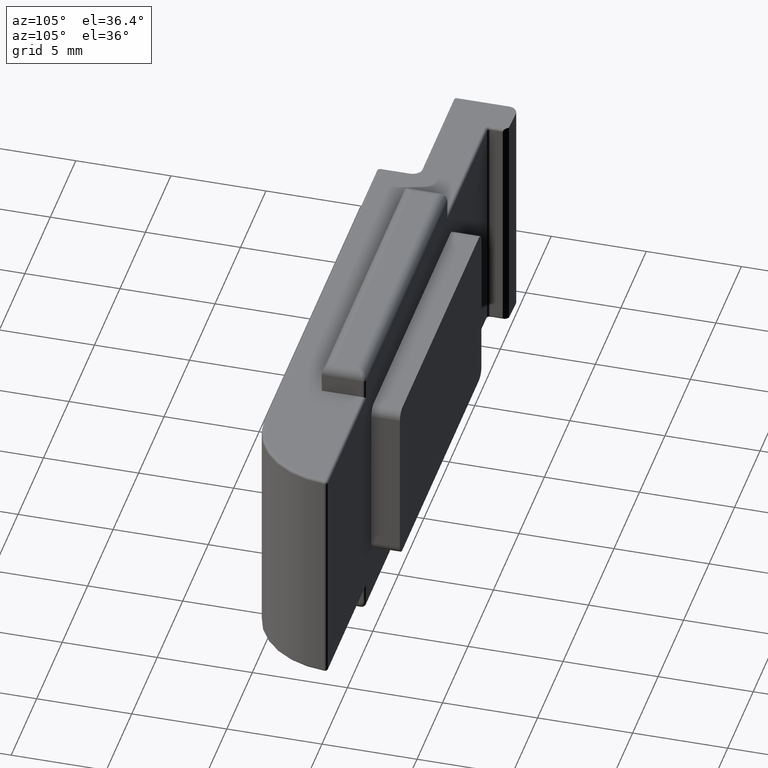
[diagram: clean part render]
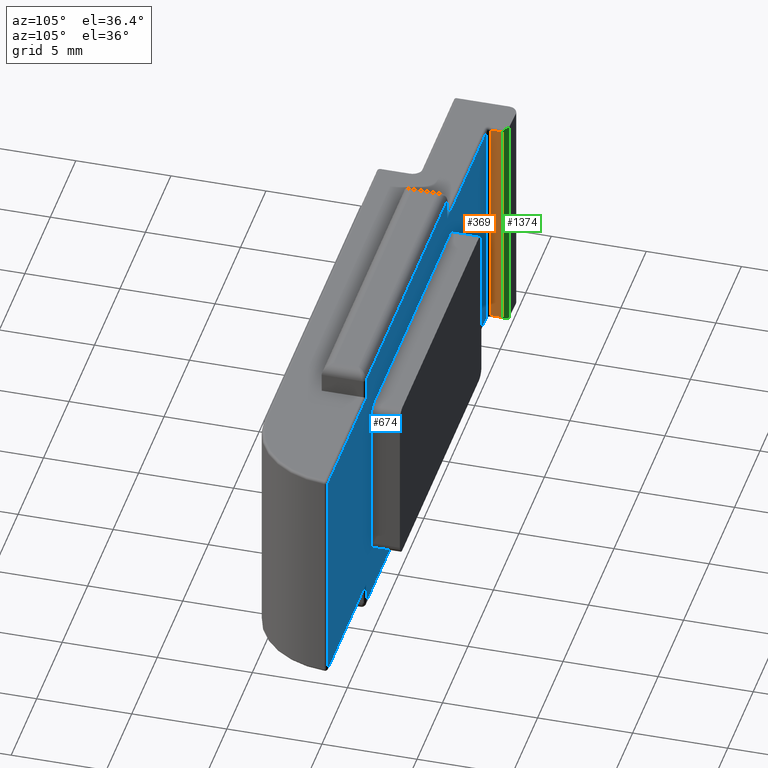
[diagram: same view with three faces highlighted in distinct colors, each labeled with its STEP entity id]
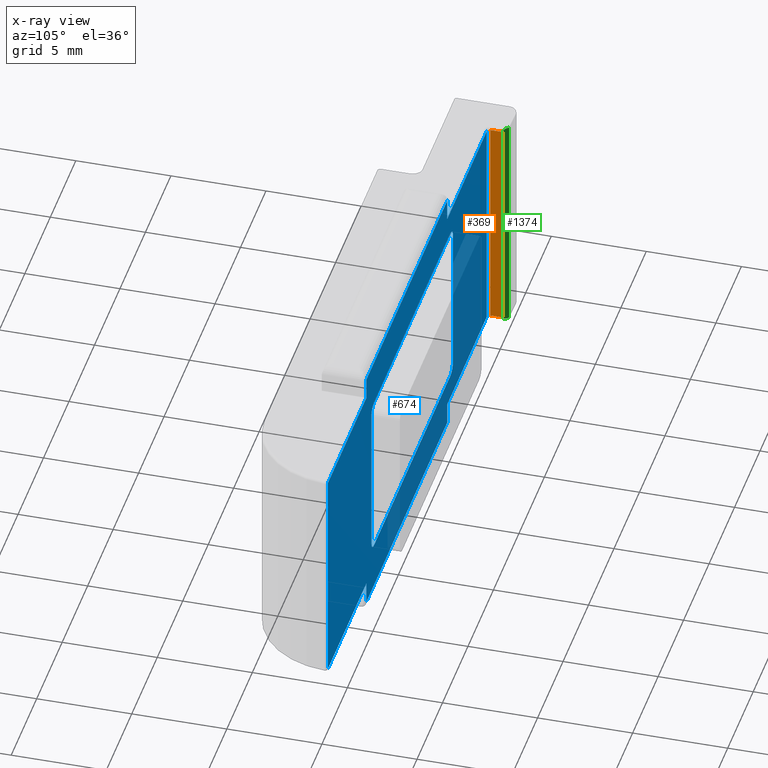
[diagram: x-ray of the same camera — body ghosted, the three highlighted faces saturated]
A machine part, auxiliary view with three faces highlighted in distinct colors.
The next image is the same camera in x-ray (body ghosted, the three faces saturated) — at least one of them is partly hidden behind the body in this view.
Their STEP definitions:

[orange] entity #369 — the highlighted planar face has unit normal (-1, -0, 0).
#76 = CARTESIAN_POINT ( 'NONE',  ( -4.759999999999997122, 0.1999999999999918510, 0.1500000000000042966 ) ) ;
#143 = VECTOR ( 'NONE', #707, 1000.000000000000000 ) ;
#202 = LINE ( 'NONE', #1198, #143 ) ;
#228 = LINE ( 'NONE', #1134, #1175 ) ;
#282 = ORIENTED_EDGE ( 'NONE', *, *, #297, .T. ) ;
#297 = EDGE_CURVE ( 'NONE', #2154, #1348, #228, .T. ) ;
#331 = CARTESIAN_POINT ( 'NONE',  ( -4.760000000000024656, -0.4499999999999990119, 11.85000000000002629 ) ) ;
#369 = ADVANCED_FACE ( 'NONE', ( #1305 ), #675, .F. ) ;
#377 = DIRECTION ( 'NONE',  ( 1.663310252921209204E-33, -1.000000000000000000, -0.000000000000000000 ) ) ;
#439 = ORIENTED_EDGE ( 'NONE', *, *, #1103, .T. ) ;
#675 = PLANE ( 'NONE',  #2037 ) ;
#691 = VERTEX_POINT ( 'NONE', #1607 ) ;
#707 = DIRECTION ( 'NONE',  ( 0.000000000000000000, -6.162975822039132834E-33, -1.000000000000000000 ) ) ;
#832 = LINE ( 'NONE', #870, #1761 ) ;
#870 = CARTESIAN_POINT ( 'NONE',  ( -4.760000000000021103, 0.4499999999999990119, 11.85000000000002629 ) ) ;
#903 = VERTEX_POINT ( 'NONE', #331 ) ;
#1022 = EDGE_CURVE ( 'NONE', #691, #2154, #1711, .T. ) ;
#1057 = DIRECTION ( 'NONE',  ( -1.663310252921209204E-33, 1.000000000000000000, 0.000000000000000000 ) ) ;
#1103 = EDGE_CURVE ( 'NONE', #903, #691, #202, .T. ) ;
#1134 = CARTESIAN_POINT ( 'NONE',  ( -4.760000000000021103, 0.1999999999999918510, 12.00000000000003197 ) ) ;
#1172 = EDGE_CURVE ( 'NONE', #1348, #903, #832, .T. ) ;
#1175 = VECTOR ( 'NONE', #1652, 1000.000000000000000 ) ;
#1198 = CARTESIAN_POINT ( 'NONE',  ( -4.760000000000000675, -0.4499999999999990119, 0.000000000000000000 ) ) ;
#1305 = FACE_OUTER_BOUND ( 'NONE', #1325, .T. ) ;
#1325 = EDGE_LOOP ( 'NONE', ( #2035, #282, #2021, #439 ) ) ;
#1348 = VERTEX_POINT ( 'NONE', #2153 ) ;
#1504 = DIRECTION ( 'NONE',  ( -1.000000000000000000, -2.298859303523532590E-32, 1.416781430588525137E-64 ) ) ;
#1536 = CARTESIAN_POINT ( 'NONE',  ( -4.759999999999997122, 0.4499999999999990119, 0.1500000000000042966 ) ) ;
#1607 = CARTESIAN_POINT ( 'NONE',  ( -4.760000000000000675, -0.4499999999999990119, 0.1500000000000042966 ) ) ;
#1652 = DIRECTION ( 'NONE',  ( 0.000000000000000000, 6.162975822039132834E-33, 1.000000000000000000 ) ) ;
#1695 = CARTESIAN_POINT ( 'NONE',  ( -4.760000000000021103, 0.4499999999999990119, 12.00000000000003197 ) ) ;
#1711 = LINE ( 'NONE', #1536, #2107 ) ;
#1761 = VECTOR ( 'NONE', #377, 1000.000000000000000 ) ;
#2021 = ORIENTED_EDGE ( 'NONE', *, *, #1172, .T. ) ;
#2035 = ORIENTED_EDGE ( 'NONE', *, *, #1022, .T. ) ;
#2037 = AXIS2_PLACEMENT_3D ( 'NONE', #1695, #1504, #2201 ) ;
#2107 = VECTOR ( 'NONE', #1057, 1000.000000000000000 ) ;
#2153 = CARTESIAN_POINT ( 'NONE',  ( -4.760000000000021103, 0.1999999999999918510, 11.85000000000002629 ) ) ;
#2154 = VERTEX_POINT ( 'NONE', #76 ) ;
#2201 = DIRECTION ( 'NONE',  ( 0.000000000000000000, 6.162975822039132834E-33, 1.000000000000000000 ) ) ;

[blue] entity #674 — the highlighted planar face has unit normal (-0, -1, 0).
#1 = FACE_OUTER_BOUND ( 'NONE', #721, .T. ) ;
#15 = EDGE_CURVE ( 'NONE', #70, #979, #591, .T. ) ;
#37 = EDGE_CURVE ( 'NONE', #2205, #190, #969, .T. ) ;
#44 = CARTESIAN_POINT ( 'NONE',  ( 3.150000000000003464, -0.6000000000000033085, 12.00000000000003197 ) ) ;
#47 = EDGE_CURVE ( 'NONE', #943, #1998, #749, .T. ) ;
#48 = CARTESIAN_POINT ( 'NONE',  ( -4.610000000000023412, -0.6000000000000033085, 12.00000000000003197 ) ) ;
#54 = VECTOR ( 'NONE', #945, 1000.000000000000000 ) ;
#66 = CARTESIAN_POINT ( 'NONE',  ( 3.150000000000001688, -0.6000000000000033085, 0.1499999999999973577 ) ) ;
#70 = VERTEX_POINT ( 'NONE', #891 ) ;
#71 = EDGE_CURVE ( 'NONE', #1784, #1752, #1154, .T. ) ;
#72 = ORIENTED_EDGE ( 'NONE', *, *, #2096, .T. ) ;
#87 = CARTESIAN_POINT ( 'NONE',  ( 3.150000000000003464, -0.6000000000000033085, 12.00000000000003197 ) ) ;
#89 = DIRECTION ( 'NONE',  ( 1.000000000000000000, 0.000000000000000000, 0.000000000000000000 ) ) ;
#108 = DIRECTION ( 'NONE',  ( -3.446287897283861734E-18, -1.000000000000000000, 0.000000000000000000 ) ) ;
#152 = CARTESIAN_POINT ( 'NONE',  ( 17.54741302385687973, -0.5999999999999963141, 2.000000000000001776 ) ) ;
#155 = CARTESIAN_POINT ( 'NONE',  ( 26.54741302385691526, -0.5999999999999963141, 11.85000000000000675 ) ) ;
#159 = ORIENTED_EDGE ( 'NONE', *, *, #836, .T. ) ;
#168 = CARTESIAN_POINT ( 'NONE',  ( 2.547413023856828218, -0.6000000000000033085, 1.500000000000001332 ) ) ;
#189 = DIRECTION ( 'NONE',  ( 1.000000000000000000, 0.000000000000000000, 0.000000000000000000 ) ) ;
#190 = VERTEX_POINT ( 'NONE', #1098 ) ;
#245 = CARTESIAN_POINT ( 'NONE',  ( -4.609999999999999432, -0.6000000000000033085, 0.1500000000000042966 ) ) ;
#253 = CARTESIAN_POINT ( 'NONE',  ( -4.760000000000024656, -0.6000000000000033085, 12.00000000000003197 ) ) ;
#325 = CIRCLE ( 'NONE', #505, 0.5000000000000004441 ) ;
#327 = DIRECTION ( 'NONE',  ( 1.000000000000000000, -3.446287897283827838E-18, -0.000000000000000000 ) ) ;
#335 = DIRECTION ( 'NONE',  ( 1.000000000000000000, 0.000000000000000000, 0.000000000000000000 ) ) ;
#339 = ORIENTED_EDGE ( 'NONE', *, *, #37, .T. ) ;
#346 = ORIENTED_EDGE ( 'NONE', *, *, #1635, .T. ) ;
#351 = LINE ( 'NONE', #87, #1651 ) ;
#352 = CARTESIAN_POINT ( 'NONE',  ( 18.04741302385688684, -0.5999999999999963141, 2.000000000000001776 ) ) ;
#368 = CARTESIAN_POINT ( 'NONE',  ( 17.54741302385686197, -0.5999999999999963141, 10.00000000000000533 ) ) ;
#389 = EDGE_CURVE ( 'NONE', #869, #528, #325, .T. ) ;
#399 = VECTOR ( 'NONE', #327, 1000.000000000000000 ) ;
#403 = VECTOR ( 'NONE', #1230, 1000.000000000000000 ) ;
#413 = EDGE_CURVE ( 'NONE', #818, #1116, #2161, .T. ) ;
#425 = LINE ( 'NONE', #668, #399 ) ;
#427 = DIRECTION ( 'NONE',  ( 1.000000000000000000, -3.446287897283827838E-18, 0.000000000000000000 ) ) ;
#428 = VECTOR ( 'NONE', #1581, 1000.000000000000000 ) ;
#438 = CARTESIAN_POINT ( 'NONE',  ( 3.000000000000000888, -0.6000000000000033085, -1.000000000000000888 ) ) ;
#470 = DIRECTION ( 'NONE',  ( 1.000000000000000000, -3.446287897283827838E-18, -0.000000000000000000 ) ) ;
#485 = VECTOR ( 'NONE', #1920, 1000.000000000000000 ) ;
#486 = VECTOR ( 'NONE', #1077, 1000.000000000000000 ) ;
#505 = AXIS2_PLACEMENT_3D ( 'NONE', #152, #2040, #335 ) ;
#506 = CIRCLE ( 'NONE', #1025, 0.5000000000000017764 ) ;
#528 = VERTEX_POINT ( 'NONE', #352 ) ;
#537 = CARTESIAN_POINT ( 'NONE',  ( 0.000000000000000000, -0.6000000000000033085, 1.500000000000008216 ) ) ;
#544 = DIRECTION ( 'NONE',  ( -1.000000000000000000, 4.068560582466965989E-18, 2.168404344971007635E-16 ) ) ;
#560 = CARTESIAN_POINT ( 'NONE',  ( 26.54741302385691881, -0.5999999999999963141, 0.1499999999999973577 ) ) ;
#565 = EDGE_CURVE ( 'NONE', #869, #1878, #744, .T. ) ;
#566 = CARTESIAN_POINT ( 'NONE',  ( -4.760000000000024656, -0.6000000000000033085, 11.85000000000002629 ) ) ;
#586 = CARTESIAN_POINT ( 'NONE',  ( 3.150000000000001688, -0.6000000000000033085, -1.000000000000000888 ) ) ;
#591 = LINE ( 'NONE', #566, #428 ) ;
#612 = ORIENTED_EDGE ( 'NONE', *, *, #990, .T. ) ;
#630 = DIRECTION ( 'NONE',  ( 1.000000000000000000, 0.000000000000000000, 0.000000000000000000 ) ) ;
#636 = VERTEX_POINT ( 'NONE', #66 ) ;
#650 = CIRCLE ( 'NONE', #821, 0.5000000000000017764 ) ;
#668 = CARTESIAN_POINT ( 'NONE',  ( 19.20000000000003126, -0.5999999999999963141, 13.00000000000001066 ) ) ;
#674 = ADVANCED_FACE ( 'NONE', ( #1, #2158 ), #1257, .F. ) ;
#689 = EDGE_CURVE ( 'NONE', #1938, #1784, #828, .T. ) ;
#721 = EDGE_LOOP ( 'NONE', ( #1395, #1138, #1338, #346, #824, #1409, #1428, #1915, #1010, #72, #1995, #339 ) ) ;
#726 = DIRECTION ( 'NONE',  ( -0.000000000000000000, 6.162975822039132834E-33, 1.000000000000000000 ) ) ;
#730 = EDGE_CURVE ( 'NONE', #885, #528, #1572, .T. ) ;
#741 = EDGE_CURVE ( 'NONE', #190, #943, #1463, .T. ) ;
#744 = LINE ( 'NONE', #537, #910 ) ;
#749 = LINE ( 'NONE', #44, #403 ) ;
#770 = LINE ( 'NONE', #1317, #963 ) ;
#808 = EDGE_CURVE ( 'NONE', #1752, #2086, #1073, .T. ) ;
#811 = DIRECTION ( 'NONE',  ( 0.000000000000000000, -6.162975822039132834E-33, -1.000000000000000000 ) ) ;
#814 = EDGE_CURVE ( 'NONE', #636, #2205, #770, .T. ) ;
#818 = VERTEX_POINT ( 'NONE', #960 ) ;
#821 = AXIS2_PLACEMENT_3D ( 'NONE', #1102, #1609, #89 ) ;
#824 = ORIENTED_EDGE ( 'NONE', *, *, #15, .T. ) ;
#828 = LINE ( 'NONE', #1434, #1892 ) ;
#836 = EDGE_CURVE ( 'NONE', #818, #1579, #506, .T. ) ;
#869 = VERTEX_POINT ( 'NONE', #2167 ) ;
#885 = VERTEX_POINT ( 'NONE', #1869 ) ;
#891 = CARTESIAN_POINT ( 'NONE',  ( 19.05000000000003268, -0.5999999999999963141, 11.85000000000000675 ) ) ;
#898 = CARTESIAN_POINT ( 'NONE',  ( 19.05000000000005755, -0.5999999999999963141, -1.000000000000000888 ) ) ;
#900 = EDGE_CURVE ( 'NONE', #1998, #1529, #425, .T. ) ;
#910 = VECTOR ( 'NONE', #544, 1000.000000000000000 ) ;
#933 = DIRECTION ( 'NONE',  ( 0.000000000000000000, -6.162975822039132834E-33, -1.000000000000000000 ) ) ;
#936 = VECTOR ( 'NONE', #1311, 1000.000000000000000 ) ;
#938 = DIRECTION ( 'NONE',  ( -1.000000000000000000, 3.446287897283827838E-18, 0.000000000000000000 ) ) ;
#943 = VERTEX_POINT ( 'NONE', #1019 ) ;
#945 = DIRECTION ( 'NONE',  ( -0.000000000000000000, -6.162975822039132834E-33, -1.000000000000000000 ) ) ;
#960 = CARTESIAN_POINT ( 'NONE',  ( 2.547413023856803793, -0.6000000000000033085, 10.50000000000000888 ) ) ;
#963 = VECTOR ( 'NONE', #1482, 1000.000000000000000 ) ;
#969 = LINE ( 'NONE', #48, #1049 ) ;
#979 = VERTEX_POINT ( 'NONE', #155 ) ;
#990 = EDGE_CURVE ( 'NONE', #885, #1116, #1249, .T. ) ;
#1010 = ORIENTED_EDGE ( 'NONE', *, *, #808, .T. ) ;
#1019 = CARTESIAN_POINT ( 'NONE',  ( 3.150000000000003464, -0.6000000000000033085, 11.85000000000002629 ) ) ;
#1025 = AXIS2_PLACEMENT_3D ( 'NONE', #1992, #108, #630 ) ;
#1035 = ORIENTED_EDGE ( 'NONE', *, *, #2043, .F. ) ;
#1049 = VECTOR ( 'NONE', #726, 1000.000000000000000 ) ;
#1065 = ORIENTED_EDGE ( 'NONE', *, *, #389, .T. ) ;
#1067 = ORIENTED_EDGE ( 'NONE', *, *, #730, .F. ) ;
#1073 = LINE ( 'NONE', #438, #936 ) ;
#1077 = DIRECTION ( 'NONE',  ( 1.445602896647338670E-16, 6.162975822039132834E-33, 1.000000000000000000 ) ) ;
#1089 = ORIENTED_EDGE ( 'NONE', *, *, #1689, .T. ) ;
#1098 = CARTESIAN_POINT ( 'NONE',  ( -4.610000000000023412, -0.6000000000000033085, 11.85000000000002629 ) ) ;
#1102 = CARTESIAN_POINT ( 'NONE',  ( 2.547413023856828218, -0.6000000000000033085, 2.000000000000001776 ) ) ;
#1116 = VERTEX_POINT ( 'NONE', #1396 ) ;
#1123 = LINE ( 'NONE', #1431, #54 ) ;
#1138 = ORIENTED_EDGE ( 'NONE', *, *, #47, .T. ) ;
#1154 = LINE ( 'NONE', #898, #485 ) ;
#1200 = EDGE_CURVE ( 'NONE', #979, #1938, #1123, .T. ) ;
#1211 = DIRECTION ( 'NONE',  ( -3.446287897283861734E-18, -1.000000000000000000, 0.000000000000000000 ) ) ;
#1230 = DIRECTION ( 'NONE',  ( -0.000000000000000000, 6.162975822039132834E-33, 1.000000000000000000 ) ) ;
#1237 = ORIENTED_EDGE ( 'NONE', *, *, #413, .F. ) ;
#1246 = LINE ( 'NONE', #1560, #486 ) ;
#1249 = CIRCLE ( 'NONE', #1796, 0.5000000000000004441 ) ;
#1257 = PLANE ( 'NONE',  #2135 ) ;
#1296 = VERTEX_POINT ( 'NONE', #1831 ) ;
#1311 = DIRECTION ( 'NONE',  ( -1.000000000000000000, 3.446287897283827838E-18, -0.000000000000000000 ) ) ;
#1317 = CARTESIAN_POINT ( 'NONE',  ( -4.760000000000000675, -0.6000000000000033085, 0.1500000000000042966 ) ) ;
#1330 = VECTOR ( 'NONE', #470, 1000.000000000000000 ) ;
#1338 = ORIENTED_EDGE ( 'NONE', *, *, #900, .T. ) ;
#1395 = ORIENTED_EDGE ( 'NONE', *, *, #741, .T. ) ;
#1396 = CARTESIAN_POINT ( 'NONE',  ( 17.54741302385686197, -0.5999999999999963141, 10.50000000000000533 ) ) ;
#1409 = ORIENTED_EDGE ( 'NONE', *, *, #1200, .T. ) ;
#1428 = ORIENTED_EDGE ( 'NONE', *, *, #689, .T. ) ;
#1431 = CARTESIAN_POINT ( 'NONE',  ( 26.54741302385691881, -0.5999999999999963141, 0.000000000000000000 ) ) ;
#1434 = CARTESIAN_POINT ( 'NONE',  ( 19.20000000000005258, -0.5999999999999963141, 0.1499999999999973577 ) ) ;
#1463 = LINE ( 'NONE', #1494, #1330 ) ;
#1482 = DIRECTION ( 'NONE',  ( -1.000000000000000000, 3.446287897283827838E-18, 0.000000000000000000 ) ) ;
#1494 = CARTESIAN_POINT ( 'NONE',  ( -4.760000000000024656, -0.6000000000000033085, 11.85000000000002629 ) ) ;
#1508 = DIRECTION ( 'NONE',  ( 1.000000000000000000, -4.068560582466971381E-18, 0.000000000000000000 ) ) ;
#1529 = VERTEX_POINT ( 'NONE', #1907 ) ;
#1553 = VECTOR ( 'NONE', #933, 1000.000000000000000 ) ;
#1560 = CARTESIAN_POINT ( 'NONE',  ( 2.047413023856827774, -0.6000000000000033085, 0.000000000000000000 ) ) ;
#1563 = EDGE_LOOP ( 'NONE', ( #1035, #1089, #1619, #1065, #1067, #612, #1237, #159 ) ) ;
#1572 = LINE ( 'NONE', #1810, #1859 ) ;
#1579 = VERTEX_POINT ( 'NONE', #1780 ) ;
#1581 = DIRECTION ( 'NONE',  ( 1.000000000000000000, -3.446287897283827838E-18, -0.000000000000000000 ) ) ;
#1609 = DIRECTION ( 'NONE',  ( -3.446287897283861734E-18, -1.000000000000000000, 0.000000000000000000 ) ) ;
#1619 = ORIENTED_EDGE ( 'NONE', *, *, #565, .F. ) ;
#1635 = EDGE_CURVE ( 'NONE', #1529, #70, #1656, .T. ) ;
#1636 = CARTESIAN_POINT ( 'NONE',  ( 19.05000000000003268, -0.5999999999999963141, 12.00000000000001066 ) ) ;
#1651 = VECTOR ( 'NONE', #1933, 1000.000000000000000 ) ;
#1656 = LINE ( 'NONE', #1636, #1553 ) ;
#1666 = CARTESIAN_POINT ( 'NONE',  ( -2.428612866367529932E-14, -0.6000000000000033085, 10.50000000000000888 ) ) ;
#1689 = EDGE_CURVE ( 'NONE', #1296, #1878, #650, .T. ) ;
#1752 = VERTEX_POINT ( 'NONE', #1988 ) ;
#1780 = CARTESIAN_POINT ( 'NONE',  ( 2.047413023856803349, -0.6000000000000033085, 10.00000000000000888 ) ) ;
#1784 = VERTEX_POINT ( 'NONE', #2015 ) ;
#1796 = AXIS2_PLACEMENT_3D ( 'NONE', #368, #1211, #189 ) ;
#1810 = CARTESIAN_POINT ( 'NONE',  ( 18.04741302385688684, -0.5999999999999963141, 0.000000000000000000 ) ) ;
#1831 = CARTESIAN_POINT ( 'NONE',  ( 2.047413023856827774, -0.6000000000000033085, 2.000000000000001776 ) ) ;
#1859 = VECTOR ( 'NONE', #811, 1000.000000000000000 ) ;
#1869 = CARTESIAN_POINT ( 'NONE',  ( 18.04741302385686197, -0.5999999999999963141, 10.00000000000000533 ) ) ;
#1878 = VERTEX_POINT ( 'NONE', #168 ) ;
#1892 = VECTOR ( 'NONE', #938, 1000.000000000000000 ) ;
#1907 = CARTESIAN_POINT ( 'NONE',  ( 19.05000000000003268, -0.5999999999999963141, 13.00000000000001066 ) ) ;
#1914 = CARTESIAN_POINT ( 'NONE',  ( 3.150000000000003464, -0.6000000000000033085, 13.00000000000003197 ) ) ;
#1915 = ORIENTED_EDGE ( 'NONE', *, *, #71, .T. ) ;
#1920 = DIRECTION ( 'NONE',  ( -0.000000000000000000, -6.162975822039132834E-33, -1.000000000000000000 ) ) ;
#1933 = DIRECTION ( 'NONE',  ( 0.000000000000000000, 6.162975822039132834E-33, 1.000000000000000000 ) ) ;
#1938 = VERTEX_POINT ( 'NONE', #560 ) ;
#1951 = DIRECTION ( 'NONE',  ( -3.446287897283827838E-18, -1.000000000000000000, 0.000000000000000000 ) ) ;
#1988 = CARTESIAN_POINT ( 'NONE',  ( 19.05000000000005755, -0.5999999999999963141, -1.000000000000000888 ) ) ;
#1992 = CARTESIAN_POINT ( 'NONE',  ( 2.547413023856803793, -0.6000000000000033085, 10.00000000000000888 ) ) ;
#1995 = ORIENTED_EDGE ( 'NONE', *, *, #814, .T. ) ;
#1998 = VERTEX_POINT ( 'NONE', #1914 ) ;
#2015 = CARTESIAN_POINT ( 'NONE',  ( 19.05000000000005755, -0.5999999999999963141, 0.1499999999999973577 ) ) ;
#2040 = DIRECTION ( 'NONE',  ( -3.446287897283861734E-18, -1.000000000000000000, 0.000000000000000000 ) ) ;
#2043 = EDGE_CURVE ( 'NONE', #1296, #1579, #1246, .T. ) ;
#2083 = VECTOR ( 'NONE', #1508, 1000.000000000000000 ) ;
#2086 = VERTEX_POINT ( 'NONE', #586 ) ;
#2096 = EDGE_CURVE ( 'NONE', #2086, #636, #351, .T. ) ;
#2135 = AXIS2_PLACEMENT_3D ( 'NONE', #253, #1951, #427 ) ;
#2158 = FACE_BOUND ( 'NONE', #1563, .T. ) ;
#2161 = LINE ( 'NONE', #1666, #2083 ) ;
#2167 = CARTESIAN_POINT ( 'NONE',  ( 17.54741302385688684, -0.5999999999999963141, 1.500000000000001332 ) ) ;
#2205 = VERTEX_POINT ( 'NONE', #245 ) ;

[green] entity #1374 — the highlighted planar face has unit normal (-0.7071, -0.7071, 0).
#49 = EDGE_LOOP ( 'NONE', ( #315, #835, #1263, #641, #557, #1781 ) ) ;
#76 = CARTESIAN_POINT ( 'NONE',  ( -4.759999999999997122, 0.1999999999999918510, 0.1500000000000042966 ) ) ;
#82 =( BOUNDED_CURVE ( )  B_SPLINE_CURVE ( 3, ( #1105, #2111, #1775, #281 ),
 .UNSPECIFIED., .F., .F. ) 
 B_SPLINE_CURVE_WITH_KNOTS ( ( 4, 4 ),
 ( 4.712388980384689674, 6.283185307179586232 ),
 .UNSPECIFIED. ) 
 CURVE ( )  GEOMETRIC_REPRESENTATION_ITEM ( )  RATIONAL_B_SPLINE_CURVE ( ( 1.000000000000000000, 0.8047378541243649375, 0.8047378541243649375, 1.000000000000000000 ) ) 
 REPRESENTATION_ITEM ( '' )  );
#160 = VERTEX_POINT ( 'NONE', #1110 ) ;
#217 = AXIS2_PLACEMENT_3D ( 'NONE', #831, #1344, #2038 ) ;
#228 = LINE ( 'NONE', #1134, #1175 ) ;
#270 = VERTEX_POINT ( 'NONE', #783 ) ;
#281 = CARTESIAN_POINT ( 'NONE',  ( -4.759999999999997122, 0.1999999999999918510, 0.1500000000000042966 ) ) ;
#297 = EDGE_CURVE ( 'NONE', #2154, #1348, #228, .T. ) ;
#315 = ORIENTED_EDGE ( 'NONE', *, *, #756, .F. ) ;
#529 = EDGE_CURVE ( 'NONE', #160, #1828, #2054, .T. ) ;
#557 = ORIENTED_EDGE ( 'NONE', *, *, #1825, .F. ) ;
#571 = VECTOR ( 'NONE', #1506, 1000.000000000000114 ) ;
#641 = ORIENTED_EDGE ( 'NONE', *, *, #529, .F. ) ;
#681 = CARTESIAN_POINT ( 'NONE',  ( -4.909999999999993925, 0.3499999999999892086, 0.000000000000000000 ) ) ;
#706 = CARTESIAN_POINT ( 'NONE',  ( -2.280000000000038884, -2.280000000000004245, 0.000000000000000000 ) ) ;
#756 = EDGE_CURVE ( 'NONE', #1348, #270, #1708, .T. ) ;
#783 = CARTESIAN_POINT ( 'NONE',  ( -4.910000000000018794, 0.3499999999999892086, 12.00000000000003197 ) ) ;
#785 = CARTESIAN_POINT ( 'NONE',  ( -4.910000000000018794, 0.3499999999999892086, 12.00000000000003197 ) ) ;
#810 = CARTESIAN_POINT ( 'NONE',  ( -5.016410256410281043, 0.4564102564102584525, 12.00000000000003197 ) ) ;
#831 = CARTESIAN_POINT ( 'NONE',  ( -5.016410256410281043, 0.4564102564102584525, 12.00000000000003197 ) ) ;
#835 = ORIENTED_EDGE ( 'NONE', *, *, #297, .F. ) ;
#991 = CARTESIAN_POINT ( 'NONE',  ( -5.016410256410281043, 0.4564102564102584525, 12.00000000000003197 ) ) ;
#1017 = VECTOR ( 'NONE', #1371, 1000.000000000000114 ) ;
#1026 = PLANE ( 'NONE',  #217 ) ;
#1105 = CARTESIAN_POINT ( 'NONE',  ( -4.909999999999993925, 0.3499999999999892086, 0.000000000000000000 ) ) ;
#1110 = CARTESIAN_POINT ( 'NONE',  ( -5.016410256410259727, 0.4564102564102584525, 0.000000000000000000 ) ) ;
#1134 = CARTESIAN_POINT ( 'NONE',  ( -4.760000000000021103, 0.1999999999999918510, 12.00000000000003197 ) ) ;
#1146 = EDGE_CURVE ( 'NONE', #1828, #2154, #82, .T. ) ;
#1173 = FACE_OUTER_BOUND ( 'NONE', #49, .T. ) ;
#1175 = VECTOR ( 'NONE', #1652, 1000.000000000000000 ) ;
#1263 = ORIENTED_EDGE ( 'NONE', *, *, #1146, .F. ) ;
#1306 = VECTOR ( 'NONE', #1538, 1000.000000000000000 ) ;
#1320 = VERTEX_POINT ( 'NONE', #810 ) ;
#1329 = CARTESIAN_POINT ( 'NONE',  ( -5.016410256410281043, 0.4564102564102584525, 12.00000000000003197 ) ) ;
#1344 = DIRECTION ( 'NONE',  ( -0.7071067811865532349, -0.7071067811865417996, 4.357881996052572420E-33 ) ) ;
#1348 = VERTEX_POINT ( 'NONE', #2153 ) ;
#1371 = DIRECTION ( 'NONE',  ( 0.7071067811865435759, -0.7071067811865514585, -0.000000000000000000 ) ) ;
#1374 = ADVANCED_FACE ( 'NONE', ( #1173 ), #1026, .F. ) ;
#1477 = CARTESIAN_POINT ( 'NONE',  ( -4.822132034355981922, 0.2621320343559522259, 12.00000000000002842 ) ) ;
#1506 = DIRECTION ( 'NONE',  ( -0.7071067811865435759, 0.7071067811865514585, -0.000000000000000000 ) ) ;
#1538 = DIRECTION ( 'NONE',  ( 0.000000000000000000, -6.162975822039132834E-33, -1.000000000000000000 ) ) ;
#1633 = CARTESIAN_POINT ( 'NONE',  ( -4.760000000000018439, 0.1999999999999872158, 11.93786796564405961 ) ) ;
#1652 = DIRECTION ( 'NONE',  ( 0.000000000000000000, 6.162975822039132834E-33, 1.000000000000000000 ) ) ;
#1708 =( BOUNDED_CURVE ( )  B_SPLINE_CURVE ( 3, ( #2155, #1633, #1477, #785 ),
 .UNSPECIFIED., .F., .T. ) 
 B_SPLINE_CURVE_WITH_KNOTS ( ( 4, 4 ),
 ( 3.141592653589793116, 4.712388980384689674 ),
 .UNSPECIFIED. ) 
 CURVE ( )  GEOMETRIC_REPRESENTATION_ITEM ( )  RATIONAL_B_SPLINE_CURVE ( ( 1.000000000000000000, 0.8047378541243649375, 0.8047378541243649375, 1.000000000000000000 ) ) 
 REPRESENTATION_ITEM ( '' )  );
#1718 = EDGE_CURVE ( 'NONE', #270, #1320, #1948, .T. ) ;
#1740 = LINE ( 'NONE', #991, #1306 ) ;
#1775 = CARTESIAN_POINT ( 'NONE',  ( -4.759999999999994458, 0.1999999999999872158, 0.06213203435596833385 ) ) ;
#1781 = ORIENTED_EDGE ( 'NONE', *, *, #1718, .F. ) ;
#1825 = EDGE_CURVE ( 'NONE', #1320, #160, #1740, .T. ) ;
#1828 = VERTEX_POINT ( 'NONE', #681 ) ;
#1948 = LINE ( 'NONE', #1329, #571 ) ;
#2038 = DIRECTION ( 'NONE',  ( 0.000000000000000000, -6.162975822039132834E-33, -1.000000000000000000 ) ) ;
#2054 = LINE ( 'NONE', #706, #1017 ) ;
#2111 = CARTESIAN_POINT ( 'NONE',  ( -4.822132034355957941, 0.2621320343559523369, 3.914091791828919714E-15 ) ) ;
#2153 = CARTESIAN_POINT ( 'NONE',  ( -4.760000000000021103, 0.1999999999999918510, 11.85000000000002629 ) ) ;
#2154 = VERTEX_POINT ( 'NONE', #76 ) ;
#2155 = CARTESIAN_POINT ( 'NONE',  ( -4.760000000000021103, 0.1999999999999918510, 11.85000000000002629 ) ) ;